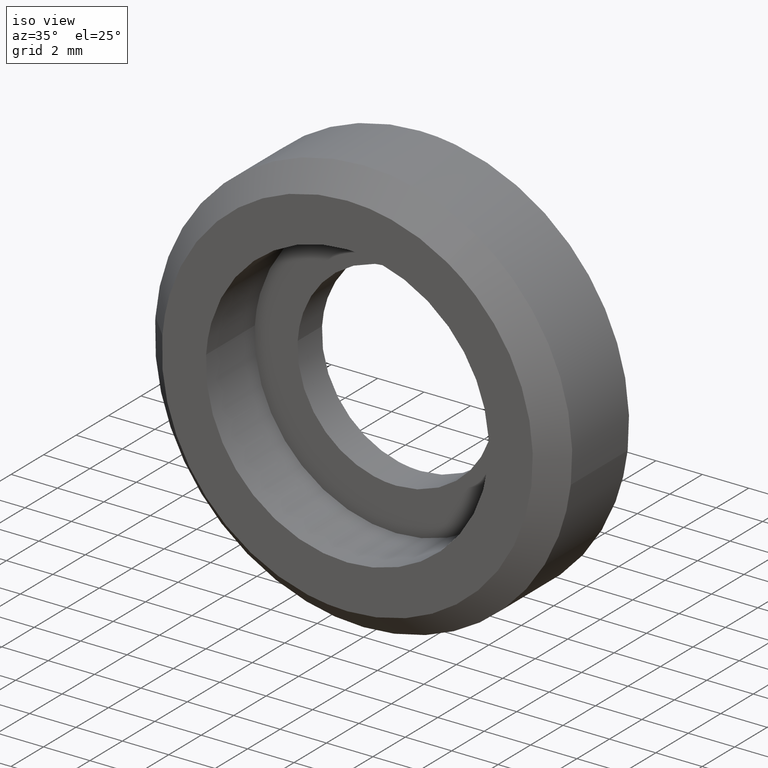
[diagram: clean part render]
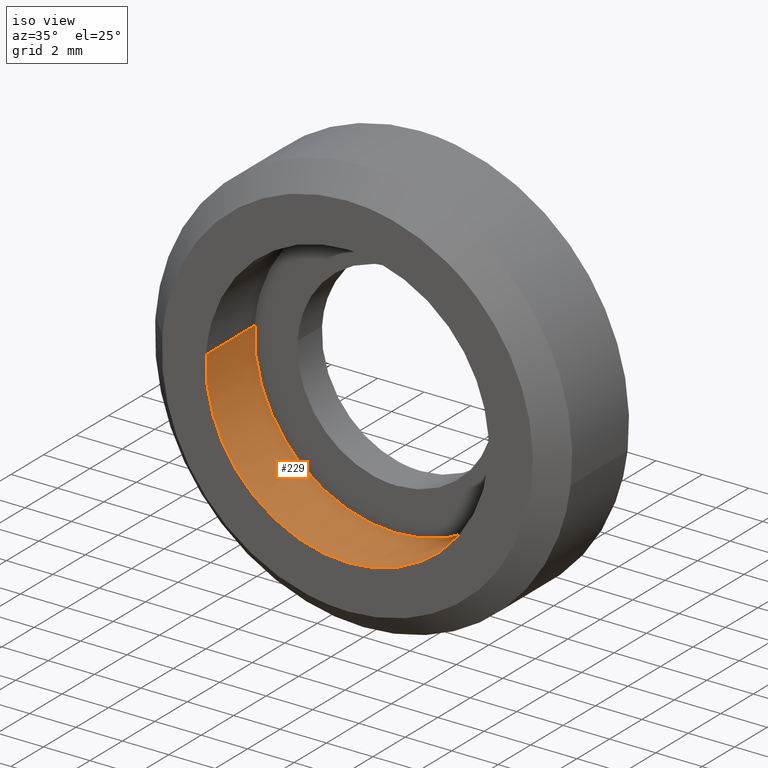
[diagram: same view with one face highlighted and labeled with its STEP entity id]
A machine part, iso view. The second image highlights one B-rep face of the part: STEP entity #229.
In plain terms, the highlighted face is a freeform B-spline surface patch.
Its self-contained STEP definition (entity closure, byte-faithful):
#66=CARTESIAN_POINT('',(6.057358824211171,2.355306E-014,-0.720002829657308));
#67=VERTEX_POINT('',#66);
#85=CARTESIAN_POINT('',(6.057358815614055,-3.0,-0.720002901985149));
#86=VERTEX_POINT('',#85);
#87=CARTESIAN_POINT('',(6.057358824211171,2.355306E-014,-0.720002829657308));
#88=CARTESIAN_POINT('',(6.057358815614055,-3.0,-0.720002901985149));
#89=QUASI_UNIFORM_CURVE('',1,(#87,#88),.UNSPECIFIED.,.F.,.U.);
#90=EDGE_CURVE('',#67,#86,#89,.T.);
#109=CARTESIAN_POINT('',(-6.088622513648906,-2.999999999999999,0.372392113600405));
#110=VERTEX_POINT('',#109);
#124=CARTESIAN_POINT('',(-6.088622516613288,-2.876172E-014,0.372392065132146));
#125=VERTEX_POINT('',#124);
#126=CARTESIAN_POINT('',(-6.088622516613288,-2.876172E-014,0.372392065132146));
#127=CARTESIAN_POINT('',(-6.088622513648906,-2.999999999999999,0.372392113600405));
#128=QUASI_UNIFORM_CURVE('',1,(#126,#127),.UNSPECIFIED.,.F.,.U.);
#129=EDGE_CURVE('',#125,#110,#128,.T.);
#147=CARTESIAN_POINT('',(-6.088622270373386,0.075000000000000,0.372396091162628));
#148=CARTESIAN_POINT('',(-6.461018361536014,0.075000000000000,-5.716226179210759));
#149=CARTESIAN_POINT('',(-0.372396091162627,0.075000000000000,-6.088622270373387));
#150=CARTESIAN_POINT('',(5.377415294120956,0.075000000000000,-6.440295800068416));
#151=CARTESIAN_POINT('',(6.057358110818366,0.075000000000000,-0.720008831406227));
#152=CARTESIAN_POINT('',(-6.088622270373386,-3.076875000000001,0.372396091162628));
#153=CARTESIAN_POINT('',(-6.461018361536014,-3.076875000000000,-5.716226179210759));
#154=CARTESIAN_POINT('',(-0.372396091162627,-3.076875000000001,-6.088622270373387));
#155=CARTESIAN_POINT('',(5.377415294120956,-3.076875000000001,-6.440295800068416));
#156=CARTESIAN_POINT('',(6.057358110818366,-3.076875000000002,-0.720008831406227));
#164=(BOUNDED_SURFACE()B_SPLINE_SURFACE(2,1,((#147,#152),(#148,#153),(#149,#154),(#150,#155),(#151,#156)),.UNSPECIFIED.,.F.,.F.,.U.)B_SPLINE_SURFACE_WITH_KNOTS((3,2,3),(2,2),(0.0,10.106810921903520,19.809349406930892),(0.0,3.151875000000002),.UNSPECIFIED.)GEOMETRIC_REPRESENTATION_ITEM()RATIONAL_B_SPLINE_SURFACE(((1.0,1.0),(0.707106781186548,0.707106781186548),(1.0,1.0),(0.718822509939086,0.718822509939086),(0.977505800795127,0.977505800795127)))REPRESENTATION_ITEM('')SURFACE());
#165=CARTESIAN_POINT('',(9.184548E-016,0.0,-6.100000000000001));
#166=VERTEX_POINT('',#165);
#167=CARTESIAN_POINT('',(9.184548E-016,0.0,-6.100000000000001));
#168=CARTESIAN_POINT('',(5.417870014221245,0.0,-6.100000000000002));
#169=CARTESIAN_POINT('',(6.057358824211171,2.355306E-014,-0.720002829657308));
#177=(BOUNDED_CURVE()B_SPLINE_CURVE(2,(#167,#168,#169),.UNSPECIFIED.,.F.,.U.)B_SPLINE_CURVE_WITH_KNOTS((3,3),(0.0,0.229562640967380),.UNSPECIFIED.)CURVE()GEOMETRIC_REPRESENTATION_ITEM()RATIONAL_B_SPLINE_CURVE((1.0,0.731050636670989,0.956027082400403))REPRESENTATION_ITEM(''));
#178=EDGE_CURVE('',#166,#67,#177,.T.);
#179=ORIENTED_EDGE('',*,*,#178,.F.);
#180=CARTESIAN_POINT('',(-6.088622516613288,-2.876172E-014,0.372392065132146));
#181=CARTESIAN_POINT('',(-6.100000000000000,0.0,0.186369837461956));
#182=CARTESIAN_POINT('',(-6.100000000000000,0.0,0.0));
#183=CARTESIAN_POINT('',(-6.100000000000000,0.0,-6.100000000000001));
#184=CARTESIAN_POINT('',(9.184548E-016,0.0,-6.100000000000001));
#192=(BOUNDED_CURVE()B_SPLINE_CURVE(2,(#180,#181,#182,#183,#184),.UNSPECIFIED.,.F.,.U.)B_SPLINE_CURVE_WITH_KNOTS((3,2,3),(0.739333076336531,0.750000000000000,1.0),.UNSPECIFIED.)CURVE()GEOMETRIC_REPRESENTATION_ITEM()RATIONAL_B_SPLINE_CURVE((0.976072286199690,0.987502921573476,1.0,0.707106781186547,1.0))REPRESENTATION_ITEM(''));
#193=EDGE_CURVE('',#125,#166,#192,.T.);
#194=ORIENTED_EDGE('',*,*,#193,.F.);
#195=ORIENTED_EDGE('',*,*,#129,.T.);
#196=CARTESIAN_POINT('',(9.184548E-016,-3.0,-6.100000000000001));
#197=VERTEX_POINT('',#196);
#198=CARTESIAN_POINT('',(-6.088622513648906,-2.999999999999999,0.372392113600405));
#199=CARTESIAN_POINT('',(-6.100000000000001,-3.000000000000000,0.186369861764032));
#200=CARTESIAN_POINT('',(-6.100000000000000,-3.0,0.0));
#201=CARTESIAN_POINT('',(-6.100000000000000,-3.000000000000000,-6.100000000000001));
#202=CARTESIAN_POINT('',(9.184548E-016,-3.0,-6.100000000000001));
#210=(BOUNDED_CURVE()B_SPLINE_CURVE(2,(#198,#199,#200,#201,#202),.UNSPECIFIED.,.F.,.U.)B_SPLINE_CURVE_WITH_KNOTS((3,2,3),(0.739333074962978,0.750000000000000,1.0),.UNSPECIFIED.)CURVE()GEOMETRIC_REPRESENTATION_ITEM()RATIONAL_B_SPLINE_CURVE((0.976072283255902,0.987502919964259,1.0,0.707106781186547,1.0))REPRESENTATION_ITEM(''));
#211=EDGE_CURVE('',#110,#197,#210,.T.);
#212=ORIENTED_EDGE('',*,*,#211,.T.);
#213=CARTESIAN_POINT('',(9.184548E-016,-3.0,-6.100000000000001));
#214=CARTESIAN_POINT('',(5.417869949073819,-3.000000000000000,-6.100000000000002));
#215=CARTESIAN_POINT('',(6.057358815614055,-3.000000000000000,-0.720002901985149));
#223=(BOUNDED_CURVE()B_SPLINE_CURVE(2,(#213,#214,#215),.UNSPECIFIED.,.F.,.U.)B_SPLINE_CURVE_WITH_KNOTS((3,3),(0.0,0.229562638949397),.UNSPECIFIED.)CURVE()GEOMETRIC_REPRESENTATION_ITEM()RATIONAL_B_SPLINE_CURVE((1.0,0.731050639035202,0.956027078445069))REPRESENTATION_ITEM(''));
#224=EDGE_CURVE('',#197,#86,#223,.T.);
#225=ORIENTED_EDGE('',*,*,#224,.T.);
#226=ORIENTED_EDGE('',*,*,#90,.F.);
#227=EDGE_LOOP('',(#179,#194,#195,#212,#225,#226));
#228=FACE_OUTER_BOUND('',#227,.T.);
#229=ADVANCED_FACE('',(#228),#164,.F.);